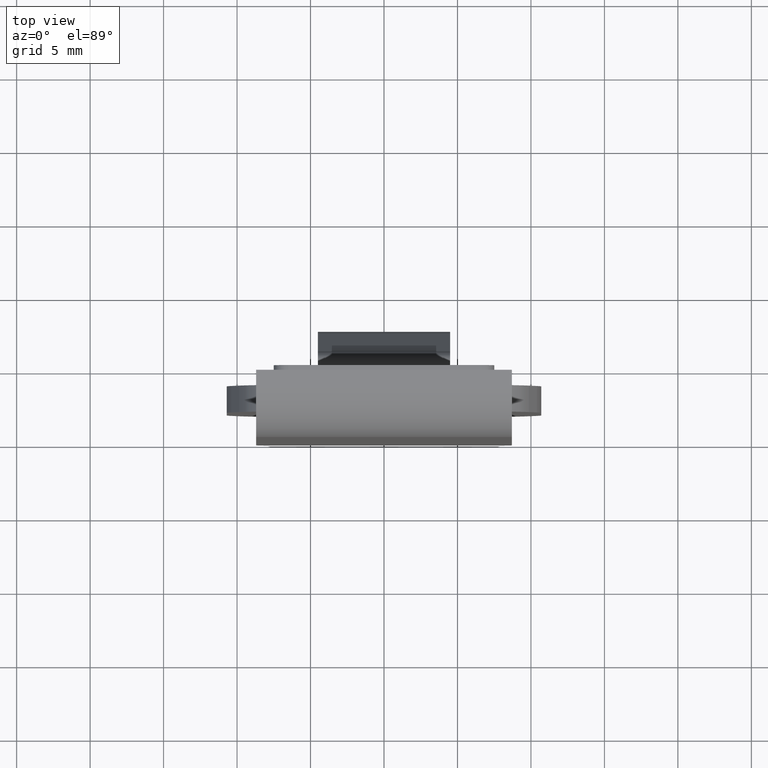
[diagram: clean part render]
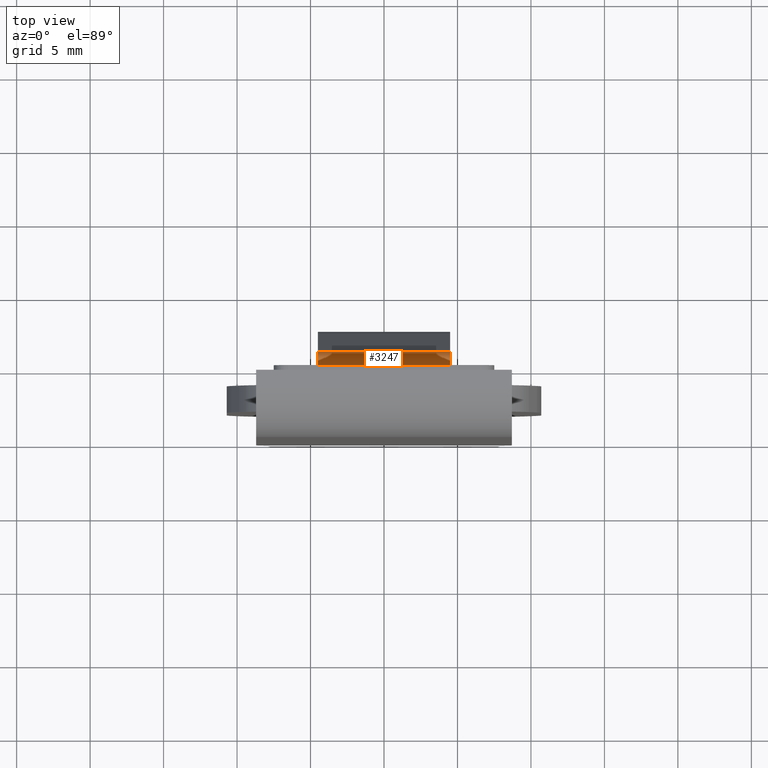
[diagram: same view with one face highlighted and labeled with its STEP entity id]
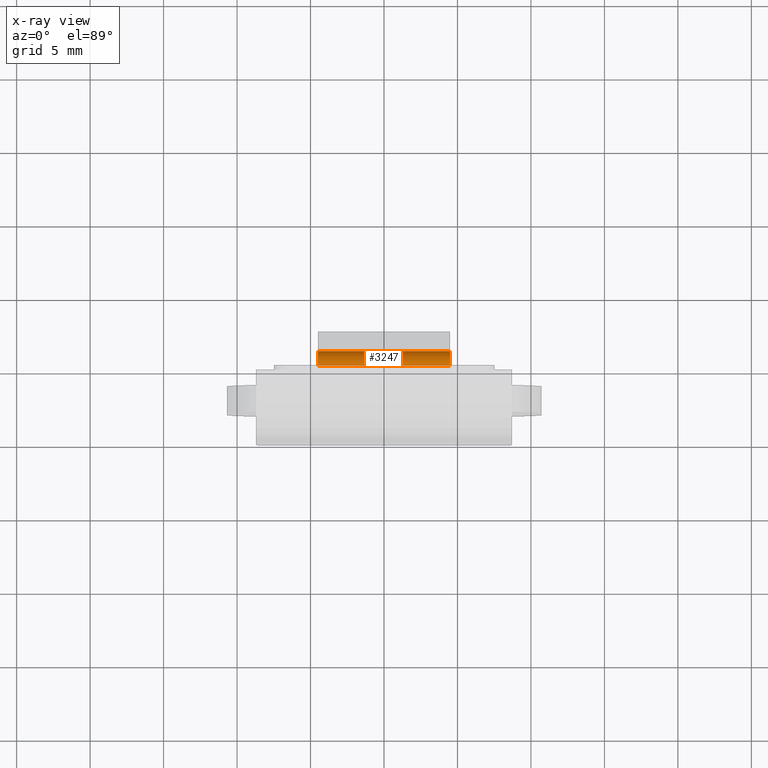
[diagram: x-ray of the same camera — body ghosted, the highlighted face saturated]
A machine part, top view. The second image highlights one B-rep face of the part: STEP entity #3247.
The next image is the same camera in x-ray: the body ghosted, the highlighted face saturated — about 4% of this face is hidden behind the body in this view.
In plain terms, the highlighted cylindrical surface (edge-blend (fillet) strip) has radius 1 mm, axis along (-1, 0, 0).
Its self-contained STEP definition (entity closure, byte-faithful):
#496 = CYLINDRICAL_SURFACE ( 'NONE', #5559, 1.000000000000000000 ) ;
#581 = ORIENTED_EDGE ( 'NONE', *, *, #10589, .F. ) ;
#826 = EDGE_CURVE ( 'NONE', #2539, #14110, #8453, .T. ) ;
#1098 = CARTESIAN_POINT ( 'NONE',  ( 8.699999999999999289, 5.424999999999999822, 0.000000000000000000 ) ) ;
#1305 = AXIS2_PLACEMENT_3D ( 'NONE', #7284, #5774, #7228 ) ;
#1601 = CARTESIAN_POINT ( 'NONE',  ( 4.500000000000000000, 5.424999999999999822, 0.000000000000000000 ) ) ;
#2539 = VERTEX_POINT ( 'NONE', #14986 ) ;
#3210 = DIRECTION ( 'NONE',  ( -1.000000000000000000, 1.630007115259560246E-16, -0.000000000000000000 ) ) ;
#3247 = ADVANCED_FACE ( 'NONE', ( #7233 ), #496, .T. ) ;
#3250 = CIRCLE ( 'NONE', #1305, 1.000000000000000000 ) ;
#3258 = ORIENTED_EDGE ( 'NONE', *, *, #15405, .T. ) ;
#3370 = VECTOR ( 'NONE', #11186, 1000.000000000000000 ) ;
#3811 = CARTESIAN_POINT ( 'NONE',  ( 8.699999999999999289, 6.424999999999999822, -1.000000000000000000 ) ) ;
#5559 = AXIS2_PLACEMENT_3D ( 'NONE', #15681, #15902, #10919 ) ;
#5692 = CARTESIAN_POINT ( 'NONE',  ( -4.499999999999999112, 5.424999999999999822, -1.000000000000000000 ) ) ;
#5774 = DIRECTION ( 'NONE',  ( -1.000000000000000000, 1.630007115259559753E-16, -0.000000000000000000 ) ) ;
#7095 = DIRECTION ( 'NONE',  ( 0.000000000000000000, 1.000000000000000000, 0.000000000000000000 ) ) ;
#7128 = CIRCLE ( 'NONE', #15555, 1.000000000000000000 ) ;
#7228 = DIRECTION ( 'NONE',  ( 0.000000000000000000, 1.000000000000000000, 0.000000000000000000 ) ) ;
#7233 = FACE_OUTER_BOUND ( 'NONE', #9506, .T. ) ;
#7284 = CARTESIAN_POINT ( 'NONE',  ( 4.500000000000000000, 5.424999999999999822, -1.000000000000000000 ) ) ;
#8453 = LINE ( 'NONE', #3811, #15567 ) ;
#8527 = ORIENTED_EDGE ( 'NONE', *, *, #826, .F. ) ;
#9506 = EDGE_LOOP ( 'NONE', ( #581, #13096, #3258, #8527 ) ) ;
#9962 = EDGE_CURVE ( 'NONE', #14540, #13106, #15822, .T. ) ;
#10589 = EDGE_CURVE ( 'NONE', #13106, #2539, #7128, .T. ) ;
#10919 = DIRECTION ( 'NONE',  ( 0.000000000000000000, 0.000000000000000000, 1.000000000000000000 ) ) ;
#11186 = DIRECTION ( 'NONE',  ( -1.000000000000000000, 0.000000000000000000, 0.000000000000000000 ) ) ;
#12729 = CARTESIAN_POINT ( 'NONE',  ( 4.500000000000000000, 6.424999999999999822, -1.000000000000000000 ) ) ;
#13096 = ORIENTED_EDGE ( 'NONE', *, *, #9962, .F. ) ;
#13106 = VERTEX_POINT ( 'NONE', #14078 ) ;
#13906 = DIRECTION ( 'NONE',  ( 1.000000000000000000, -0.000000000000000000, -0.000000000000000000 ) ) ;
#14078 = CARTESIAN_POINT ( 'NONE',  ( -4.500000000000000000, 5.424999999999999822, 0.000000000000000000 ) ) ;
#14110 = VERTEX_POINT ( 'NONE', #12729 ) ;
#14540 = VERTEX_POINT ( 'NONE', #1601 ) ;
#14986 = CARTESIAN_POINT ( 'NONE',  ( -4.499999999999999112, 6.424999999999999822, -1.000000000000000000 ) ) ;
#15405 = EDGE_CURVE ( 'NONE', #14540, #14110, #3250, .T. ) ;
#15555 = AXIS2_PLACEMENT_3D ( 'NONE', #5692, #3210, #7095 ) ;
#15567 = VECTOR ( 'NONE', #13906, 1000.000000000000000 ) ;
#15681 = CARTESIAN_POINT ( 'NONE',  ( 8.699999999999999289, 5.424999999999999822, -1.000000000000000000 ) ) ;
#15822 = LINE ( 'NONE', #1098, #3370 ) ;
#15902 = DIRECTION ( 'NONE',  ( -1.000000000000000000, 0.000000000000000000, 0.000000000000000000 ) ) ;